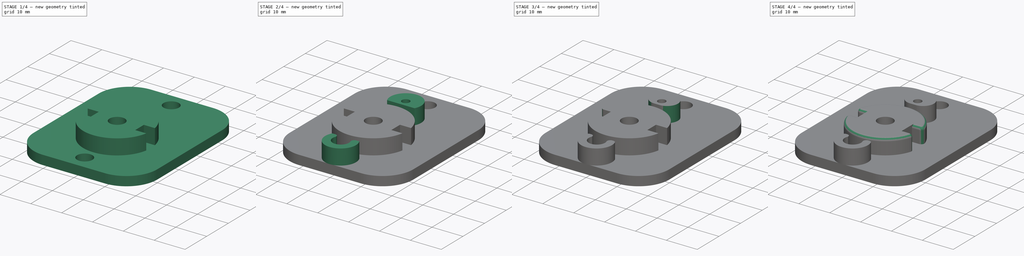
[diagram: build sequence overview — one tinted view per stage of 4, left to right]
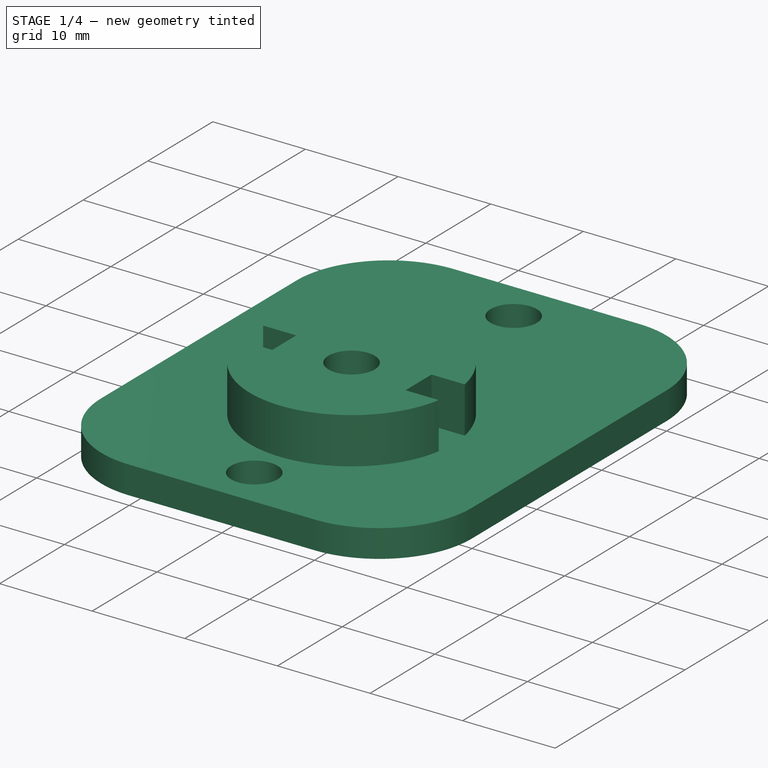
[diagram: stage 1 of 4 — iso view after this stage's code; geometry added in this stage tinted green]
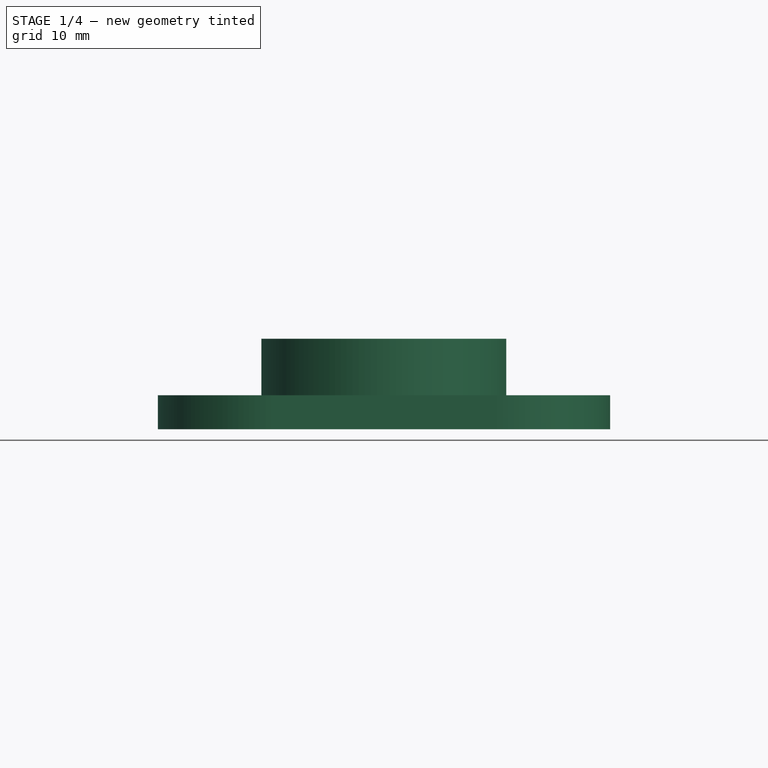
[diagram: stage 1 of 4 — front view after this stage's code; geometry added in this stage tinted green]
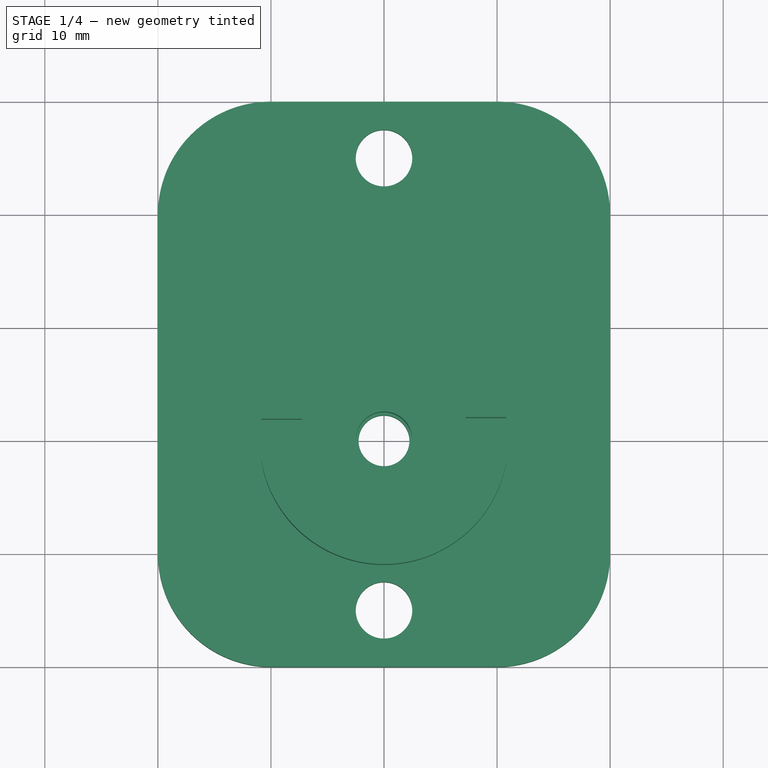
[diagram: stage 1 of 4 — top view after this stage's code; geometry added in this stage tinted green]
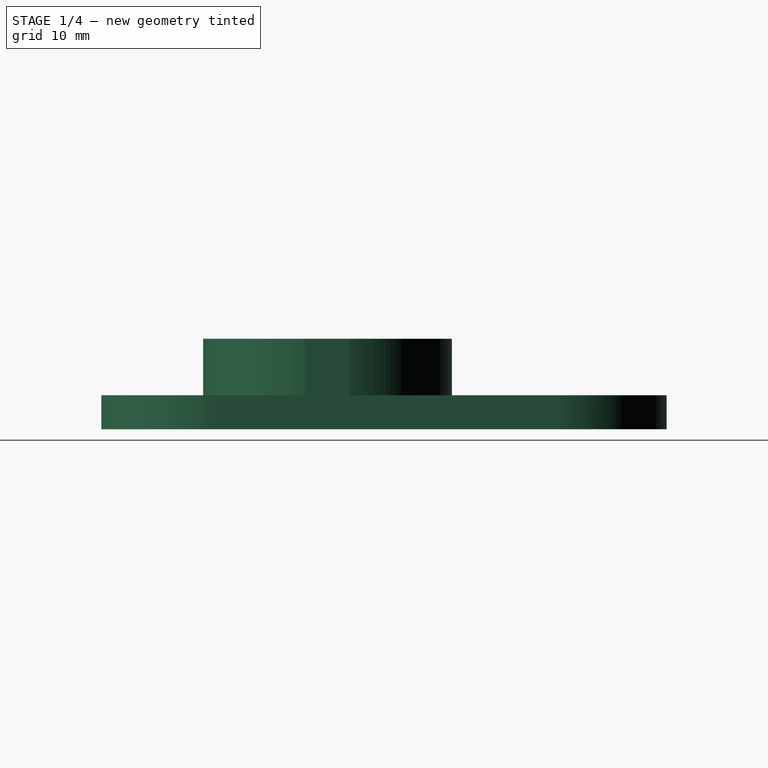
[diagram: stage 1 of 4 — right view after this stage's code; geometry added in this stage tinted green]
FCSTD DOCUMENT  (FreeCAD 0.19R24276 (Git))
Label: SC_ring_V2
License: All rights reserved
LicenseURL: http://en.wikipedia.org/wiki/All_rights_reserved
objects: PartDesign::Fillet×9, Sketcher::SketchObject×4, PartDesign::Pad×3, PartDesign::Pocket×1, PartDesign::Body×1
note: 31 computed .brp shape members not serialized (recipe doc carries the construction recipe); baked Part::Feature solids carry a one-line shape summary decoded from their .brp

FEATURE [Sketcher::SketchObject] Sketch
  FullyConstrained = false
  MapMode = 5
  Support = -> [XY_Plane]
  sketch-geometry (26):
    g0: Circle CenterX=0 CenterY=0 CenterZ=0 NormalX=0 NormalY=0 NormalZ=1 AngleXU=0 Radius=2.5
    g1: Circle CenterX=10 CenterY=5 CenterZ=0 NormalX=0 NormalY=0 NormalZ=1 AngleXU=0 Radius=2.5
    g2: Circle CenterX=10 CenterY=45 CenterZ=0 NormalX=0 NormalY=0 NormalZ=1 AngleXU=0 Radius=2.5
    g3: LineSegment StartX=0 StartY=0 StartZ=0 EndX=0 EndY=14.2557 EndZ=0
    g4: LineSegment StartX=0 StartY=0 StartZ=0 EndX=12.3949 EndY=0 EndZ=0
    g5: Circle CenterX=-10 CenterY=5 CenterZ=0 NormalX=0 NormalY=0 NormalZ=1 AngleXU=0 Radius=2.5
    g6: Circle CenterX=-10 CenterY=45 CenterZ=0 NormalX=0 NormalY=0 NormalZ=1 AngleXU=0 Radius=2.5
    g7: Circle CenterX=10 CenterY=-35 CenterZ=0 NormalX=0 NormalY=0 NormalZ=1 AngleXU=0 Radius=2.5
    g8: Circle CenterX=-10 CenterY=-35 CenterZ=0 NormalX=0 NormalY=0 NormalZ=1 AngleXU=0 Radius=2.5
    g9: LineSegment StartX=-18.8584 StartY=60.3876 StartZ=0 EndX=18.8539 EndY=60.3876 EndZ=0
    g10: LineSegment StartX=18.8539 StartY=60.3876 StartZ=0 EndX=18.8539 EndY=-41.7066 EndZ=0
    g11: LineSegment StartX=18.8539 StartY=-41.7066 StartZ=0 EndX=-18.8584 EndY=-41.7066 EndZ=0
    g12: LineSegment StartX=-18.8584 StartY=-41.7066 StartZ=0 EndX=-18.8584 EndY=60.3876 EndZ=0
    g13: Circle CenterX=0 CenterY=25 CenterZ=0 NormalX=0 NormalY=0 NormalZ=1 AngleXU=0 Radius=2.5
    g14: Circle CenterX=0 CenterY=-15 CenterZ=0 NormalX=0 NormalY=0 NormalZ=1 AngleXU=0 Radius=2.5
    g15: ArcOfCircle CenterX=0 CenterY=0 CenterZ=0 NormalX=0 NormalY=0 NormalZ=1 AngleXU=0 Radius=11 StartAngle=3.31086 EndAngle=6.10035
    g16: ArcOfCircle CenterX=0 CenterY=0 CenterZ=0 NormalX=0 NormalY=0 NormalZ=1 AngleXU=0 Radius=7.5 StartAngle=3.39125 EndAngle=6.01325
    g17: LineSegment StartX=0 StartY=0 StartZ=0 EndX=-7.5 EndY=0 EndZ=0
    g18: LineSegment StartX=-10.8428 StartY=1.85307 StartZ=0 EndX=-7.26747 EndY=1.85307 EndZ=0
    g19: LineSegment StartX=-7.26747 StartY=-1.85307 StartZ=0 EndX=-10.8428 EndY=-1.85307 EndZ=0
    g20: LineSegment StartX=-7.26747 StartY=-1.85307 StartZ=0 EndX=-7.26747 EndY=1.85307 EndZ=0
    g21: LineSegment StartX=10.8167 StartY=2 StartZ=0 EndX=7.22842 EndY=2 EndZ=0
    g22: LineSegment StartX=7.22842 StartY=-2 StartZ=0 EndX=10.8167 EndY=-2 EndZ=0
    g23: LineSegment StartX=7.22842 StartY=-2 StartZ=0 EndX=7.22842 EndY=2 EndZ=0
    g24: ArcOfCircle CenterX=0 CenterY=0 CenterZ=0 NormalX=0 NormalY=0 NormalZ=1 AngleXU=0 Radius=11 StartAngle=0.182835 EndAngle=2.97232
    g25: ArcOfCircle CenterX=0 CenterY=0 CenterZ=0 NormalX=0 NormalY=0 NormalZ=1 AngleXU=0 Radius=7.5 StartAngle=0.269933 EndAngle=2.89193
  constraints (63):
    c: Coincident(g0,g-1)
    c: DistanceY(g1,g2) = 40
    c: Coincident(g3,g-1)
    c: PointOnObject(g3,g-2)
    c: Vertical(g1,g2)
    c: Diameter(g1) = 5
    c: Equal(g1,g2)
    c: Coincident(g4,g-1)
    c: PointOnObject(g4,g-1)
    c: DistanceX(g-1,g1) = 10
    c: Diameter(g5) = 5
    c: Equal(g5,g6)
    c: Horizontal(g8,g7)
    c: Coincident(g9,g10)
    c: Coincident(g10,g11)
    c: Coincident(g11,g12)
    c: Coincident(g12,g9)
    c: Horizontal(g9)
    c: Horizontal(g11)
    c: Vertical(g10)
    c: Vertical(g12)
    c: PointOnObject(g13,g-2)
    c: PointOnObject(g14,g-2)
    c: Equal(g14,g13)
    c: Equal(g13,g7)
    c: Equal(g7,g2)
    c: Equal(g8,g7)
    c: Equal(g0,g14)
    c: DistanceY(g14,g-1) = 15
    c: DistanceY(g8,g14) = 20
    c: DistanceY(g-1,g13) = 25
    c: DistanceY(g5,g13) = 20
    c: Horizontal(g5,g1)
    c: Horizontal(g6,g2)
    c: DistanceX(g6,g13) = 10
    c: DistanceX(g5,g-1) = 10
    c: DistanceX(g8,g14) = 10
    c: DistanceX(g14,g7) = 10
    c: Coincident(g15,g-1)
    c: Diameter(g15) = 22
    c: Coincident(g16,g-1)
    c: Diameter(g16) = 15
    c: Coincident(g17,g-1)
    c: Horizontal(g17)
    c: Horizontal(g18)
    c: Horizontal(g19)
    c: Coincident(g20,g19)
    c: Coincident(g20,g18)
    c: Vertical(g20)
    c: Coincident(g15,g19)
    c: Coincident(g24,g18)
    c: Coincident(g25,g18)
    c: Coincident(g16,g19)
    c: Coincident(g23,g22)
    c: Coincident(g23,g21)
    c: Equal(g15,g24)
    c: PointOnObject(g24,g21)
    c: Coincident(g15,g24)
    c: PointOnObject(g15,g22)
    c: Equal(g16,g25)
    c: PointOnObject(g16,g22)
    c: Coincident(g16,g25)
    c: PointOnObject(g25,g21)
FEATURE [PartDesign::Pad] Pad
  Direction = (1,1,1)
  Length = 5
  Length2 = 100
  Profile = -> Sketch
  Type = 0
FEATURE [Sketcher::SketchObject] Sketch001
  FullyConstrained = false
  MapMode = 5
  Support = -> [XY_Plane]
  sketch-geometry (32):
    g0: Circle CenterX=0 CenterY=0 CenterZ=0 NormalX=0 NormalY=0 NormalZ=1 AngleXU=0 Radius=2.25
    g1: Circle CenterX=10 CenterY=5 CenterZ=0 NormalX=0 NormalY=0 NormalZ=1 AngleXU=0 Radius=2.5
    g2: Circle CenterX=10 CenterY=45 CenterZ=0 NormalX=0 NormalY=0 NormalZ=1 AngleXU=0 Radius=2.5
    g3: LineSegment StartX=0 StartY=0 StartZ=0 EndX=0 EndY=14.2557 EndZ=0
    g4: LineSegment StartX=0 StartY=0 StartZ=0 EndX=12.3949 EndY=0 EndZ=0
    g5: Circle CenterX=-10 CenterY=5 CenterZ=0 NormalX=0 NormalY=0 NormalZ=1 AngleXU=0 Radius=2.5
    g6: Circle CenterX=-10 CenterY=45 CenterZ=0 NormalX=0 NormalY=0 NormalZ=1 AngleXU=0 Radius=2.5
    g7: Circle CenterX=10 CenterY=-35 CenterZ=0 NormalX=0 NormalY=0 NormalZ=1 AngleXU=0 Radius=2.5
    g8: Circle CenterX=-10 CenterY=-35 CenterZ=0 NormalX=0 NormalY=0 NormalZ=1 AngleXU=0 Radius=2.5
    g9: LineSegment StartX=-18.8584 StartY=60.3876 StartZ=0 EndX=18.8539 EndY=60.3876 EndZ=0
    g10: LineSegment StartX=18.8539 StartY=60.3876 StartZ=0 EndX=18.8539 EndY=-41.7066 EndZ=0
    g11: LineSegment StartX=18.8539 StartY=-41.7066 StartZ=0 EndX=-18.8584 EndY=-41.7066 EndZ=0
    g12: LineSegment StartX=-18.8584 StartY=-41.7066 StartZ=0 EndX=-18.8584 EndY=60.3876 EndZ=0
    g13: Circle CenterX=0 CenterY=25 CenterZ=0 NormalX=0 NormalY=0 NormalZ=1 AngleXU=0 Radius=2.5
    g14: Circle CenterX=0 CenterY=-15 CenterZ=0 NormalX=0 NormalY=0 NormalZ=1 AngleXU=0 Radius=2.5
    g15: ArcOfCircle CenterX=0 CenterY=0 CenterZ=0 NormalX=0 NormalY=0 NormalZ=1 AngleXU=0 Radius=11 StartAngle=3.31086 EndAngle=6.10035
    g16: ArcOfCircle CenterX=0 CenterY=0 CenterZ=0 NormalX=0 NormalY=0 NormalZ=1 AngleXU=0 Radius=7.5 StartAngle=3.39125 EndAngle=6.01325
    g17: LineSegment StartX=0 StartY=0 StartZ=0 EndX=-7.5 EndY=0 EndZ=0
    g18: LineSegment StartX=-10.8428 StartY=1.85307 StartZ=0 EndX=-7.26747 EndY=1.85307 EndZ=0
    g19: LineSegment StartX=-7.26747 StartY=-1.85307 StartZ=0 EndX=-10.8428 EndY=-1.85307 EndZ=0
    g20: LineSegment StartX=-7.26747 StartY=-1.85307 StartZ=0 EndX=-7.26747 EndY=1.85307 EndZ=0
    g21: LineSegment StartX=10.8167 StartY=2 StartZ=0 EndX=7.22842 EndY=2 EndZ=0
    g22: LineSegment StartX=7.22842 StartY=-2 StartZ=0 EndX=10.8167 EndY=-2 EndZ=0
    g23: LineSegment StartX=7.22842 StartY=-2 StartZ=0 EndX=7.22842 EndY=2 EndZ=0
    g24: ArcOfCircle CenterX=0 CenterY=0 CenterZ=0 NormalX=0 NormalY=0 NormalZ=1 AngleXU=0 Radius=11 StartAngle=0.182835 EndAngle=2.97232
    g25: ArcOfCircle CenterX=0 CenterY=0 CenterZ=0 NormalX=0 NormalY=0 NormalZ=1 AngleXU=0 Radius=7.5 StartAngle=0.269933 EndAngle=2.89193
    g26: LineSegment StartX=-20 StartY=30 StartZ=0 EndX=20 EndY=30 EndZ=0
    g27: LineSegment StartX=20 StartY=30 StartZ=0 EndX=20 EndY=-20 EndZ=0
    g28: LineSegment StartX=20 StartY=-20 StartZ=0 EndX=-20 EndY=-20 EndZ=0
    g29: LineSegment StartX=-20 StartY=-20 StartZ=0 EndX=-20 EndY=30 EndZ=0
    g30: LineSegment StartX=0 StartY=0 StartZ=0 EndX=0 EndY=-20 EndZ=0
    g31: LineSegment StartX=10 StartY=5 StartZ=0 EndX=20 EndY=5 EndZ=0
  constraints (79):
    c: Coincident(g0,g-1)
    c: DistanceY(g1,g2) = 40
    c: Coincident(g3,g-1)
    c: PointOnObject(g3,g-2)
    c: Vertical(g1,g2)
    c: Diameter(g1) = 5
    c: Equal(g1,g2)
    c: Coincident(g4,g-1)
    c: PointOnObject(g4,g-1)
    c: DistanceX(g-1,g1) = 10
    c: Diameter(g5) = 5
    c: Equal(g5,g6)
    c: Horizontal(g8,g7)
    c: Coincident(g9,g10)
    c: Coincident(g10,g11)
    c: Coincident(g11,g12)
    c: Coincident(g12,g9)
    c: Horizontal(g9)
    c: Horizontal(g11)
    c: Vertical(g10)
    c: Vertical(g12)
    c: PointOnObject(g13,g-2)
    c: PointOnObject(g14,g-2)
    c: Equal(g14,g13)
    c: Equal(g13,g7)
    c: Equal(g7,g2)
    c: Equal(g8,g7)
    c: DistanceY(g14,g-1) = 15
    c: DistanceY(g8,g14) = 20
    c: DistanceY(g-1,g13) = 25
    c: DistanceY(g5,g13) = 20
    c: Horizontal(g5,g1)
    c: Horizontal(g6,g2)
    c: DistanceX(g6,g13) = 10
    c: DistanceX(g5,g-1) = 10
    c: DistanceX(g8,g14) = 10
    c: DistanceX(g14,g7) = 10
    c: Coincident(g15,g-1)
    c: Diameter(g15) = 22
    c: Coincident(g16,g-1)
    c: Diameter(g16) = 15
    c: Coincident(g17,g-1)
    c: Horizontal(g17)
    c: Horizontal(g18)
    c: Horizontal(g19)
    c: Coincident(g20,g19)
    c: Coincident(g20,g18)
    c: Vertical(g20)
    c: Coincident(g15,g19)
    c: Coincident(g24,g18)
    c: Coincident(g25,g18)
    c: Coincident(g16,g19)
    c: Coincident(g23,g22)
    c: Coincident(g23,g21)
    c: Equal(g15,g24)
    c: PointOnObject(g24,g21)
    c: Coincident(g15,g24)
    c: PointOnObject(g15,g22)
    c: Equal(g16,g25)
    c: PointOnObject(g16,g22)
    c: Coincident(g16,g25)
    c: PointOnObject(g25,g21)
    c: Coincident(g26,g27)
    c: Coincident(g27,g28)
    c: Coincident(g28,g29)
    c: Coincident(g29,g26)
    c: Horizontal(g26)
    c: Horizontal(g28)
    c: Vertical(g27)
    c: Vertical(g29)
    c: Coincident(g30,g0)
    c: PointOnObject(g30,g-2)
    c: Symmetric(g28,g27,g30)
    c: DistanceX(g28,g28) = 40
    c: DistanceY(g27,g27) = 50
    c: Coincident(g31,g1)
    c: Horizontal(g31)
    c: Symmetric(g26,g27,g31)
    c: Diameter(g0) = 4.5
FEATURE [PartDesign::Pad] Pad001
  BaseFeature = -> Pad
  Direction = (1,1,1)
  Length = 3
  Length2 = 100
  Profile = -> Sketch001
  Reversed = true
  Type = 0
FEATURE [PartDesign::Fillet] Fillet
  Base = -> Pad001 [Edge8,Edge5,Edge1,Edge2]
  BaseFeature = -> Pad001
  Radius = 10
  SupportTransform = false
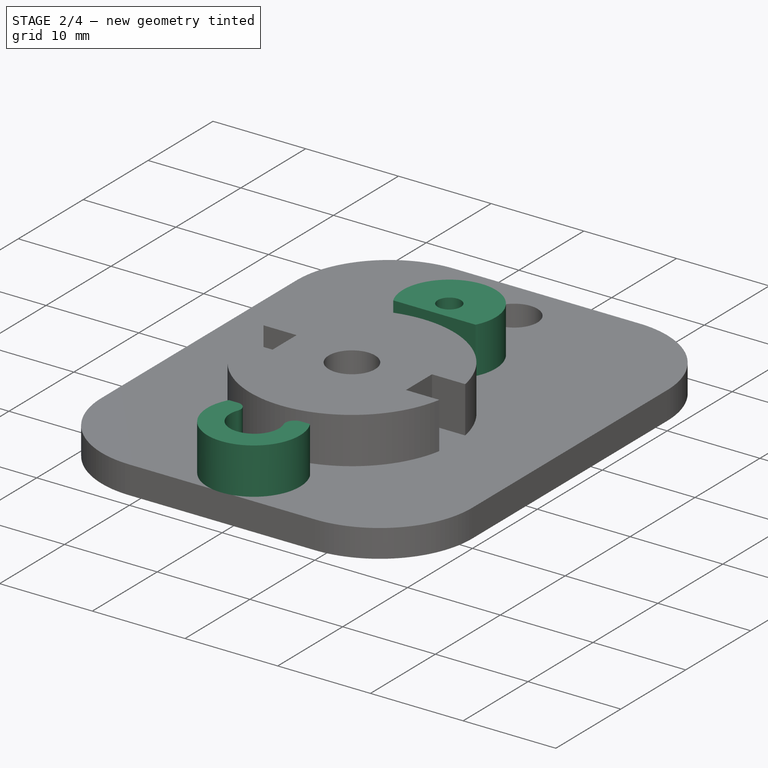
[diagram: stage 2 of 4 — iso view after this stage's code; geometry added in this stage tinted green]
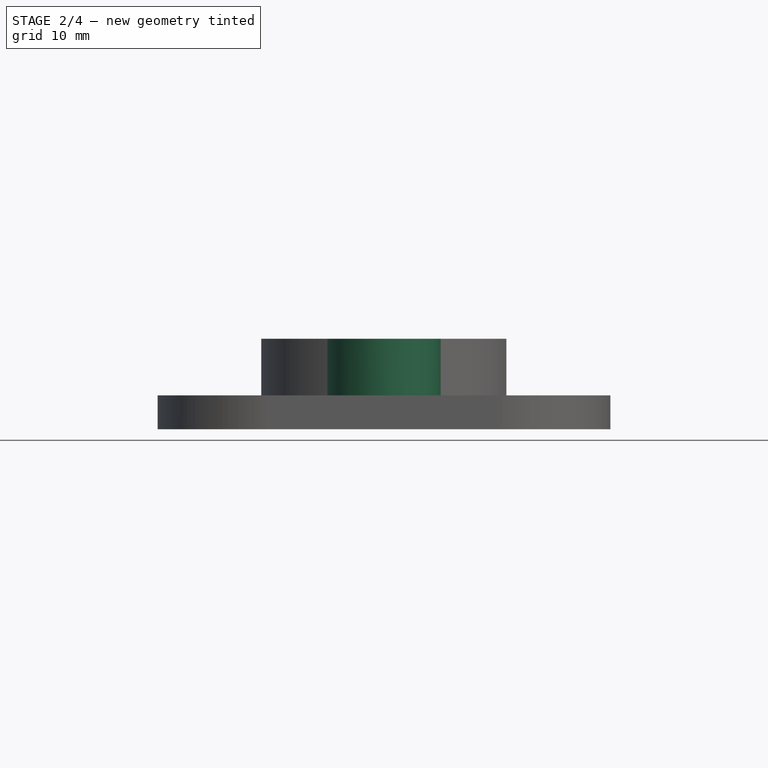
[diagram: stage 2 of 4 — front view after this stage's code; geometry added in this stage tinted green]
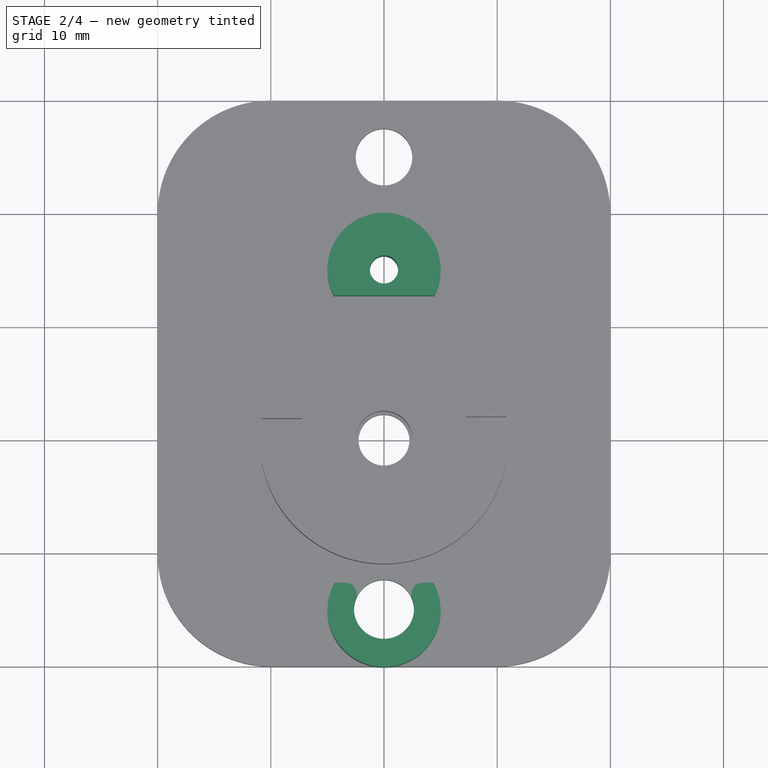
[diagram: stage 2 of 4 — top view after this stage's code; geometry added in this stage tinted green]
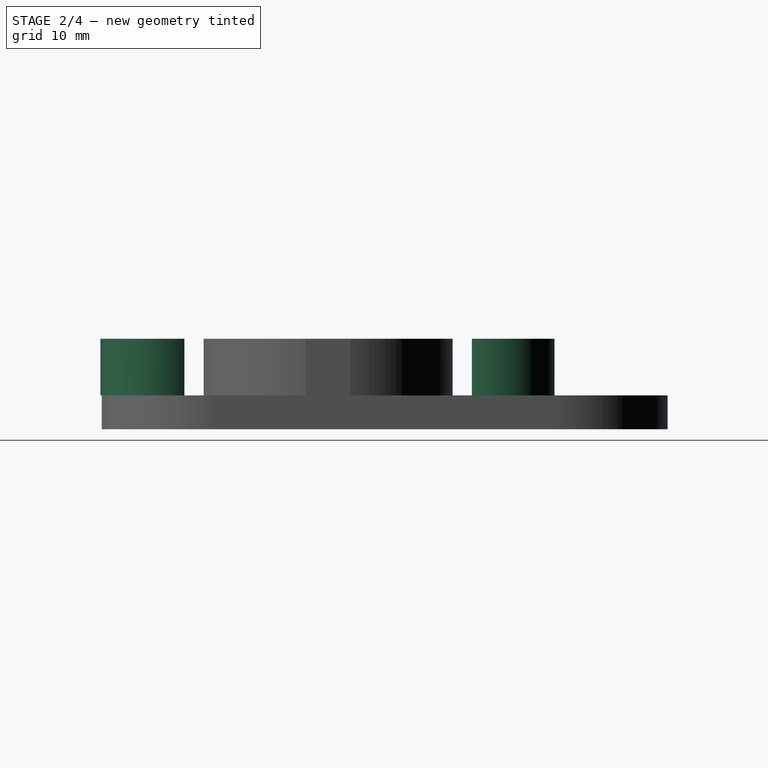
[diagram: stage 2 of 4 — right view after this stage's code; geometry added in this stage tinted green]
FEATURE [Sketcher::SketchObject] Sketch002
  FullyConstrained = false
  MapMode = 5
  Support = -> [Fillet]
  sketch-geometry (8):
    g0: ArcOfCircle CenterX=0 CenterY=-15.1265 CenterZ=0 NormalX=0 NormalY=0 NormalZ=1 AngleXU=0 Radius=5 StartAngle=2.63488 EndAngle=6.7899
    g1: LineSegment StartX=0 StartY=0 StartZ=0 EndX=0 EndY=-12.7 EndZ=0
    g2: LineSegment StartX=0 StartY=-12.7 StartZ=0 EndX=4.37172 EndY=-12.7 EndZ=0
    g3: LineSegment StartX=4.37172 StartY=-12.7 StartZ=0 EndX=-4.37172 EndY=-12.7 EndZ=0
    g4: ArcOfCircle CenterX=0 CenterY=15 CenterZ=0 NormalX=0 NormalY=0 NormalZ=1 AngleXU=0 Radius=5 StartAngle=5.80519 EndAngle=9.90277
    g5: LineSegment StartX=0 StartY=0 StartZ=0 EndX=0 EndY=12.7 EndZ=0
    g6: LineSegment StartX=0 StartY=12.7 StartZ=0 EndX=4.43959 EndY=12.7 EndZ=0
    g7: LineSegment StartX=4.43959 StartY=12.7 StartZ=0 EndX=-4.43959 EndY=12.7 EndZ=0
  constraints (23):
    c: PointOnObject(g0,g-2)
    c: Diameter(g0) = 10
    c: Coincident(g1,g-1)
    c: PointOnObject(g1,g-2)
    c: DistanceY(g1,g1) = 12.7
    c: Coincident(g2,g1)
    c: Horizontal(g2)
    c: Coincident(g3,g2)
    c: Horizontal(g3)
    c: Coincident(g0,g2)
    c: Coincident(g0,g3)
    c: PointOnObject(g4,g-2)
    c: DistanceY(g-1,g4) = 15
    c: Equal(g4,g0)
    c: Coincident(g5,g-1)
    c: PointOnObject(g5,g-2)
    c: DistanceY(g5,g5) = 12.7
    c: Coincident(g6,g5)
    c: Horizontal(g6)
    c: Coincident(g7,g6)
    c: Horizontal(g7)
    c: Coincident(g4,g7)
    c: Coincident(g4,g6)
FEATURE [PartDesign::Pad] Pad002
  BaseFeature = -> Fillet
  Direction = (1,1,1)
  Length = 5
  Length2 = 100
  Profile = -> Sketch002
  Type = 0
FEATURE [Sketcher::SketchObject] Sketch003
  FullyConstrained = true
  MapMode = 5
  Placement = pos=(0,0,5) rot=(0,0,1;0rad)
  Support = -> [Pad002]
  sketch-geometry (2):
    g0: Circle CenterX=0 CenterY=15 CenterZ=0 NormalX=0 NormalY=0 NormalZ=1 AngleXU=0 Radius=1.25
    g1: Circle CenterX=0 CenterY=-15 CenterZ=0 NormalX=0 NormalY=0 NormalZ=1 AngleXU=0 Radius=2.65
  constraints (6):
    c: PointOnObject(g0,g-2)
    c: PointOnObject(g1,g-2)
    c: Diameter(g1) = 5.3
    c: DistanceY(g1,g-1) = 15
    c: Diameter(g0) = 2.5
    c: DistanceY(g-1,g0) = 15
FEATURE [PartDesign::Pocket] Pocket
  BaseFeature = -> Pad002
  Length = 5
  Length2 = 100
  Profile = -> Sketch003
  Type = 1
FEATURE [PartDesign::Fillet] Fillet001
  Base = -> Pocket [Edge53,Edge50]
  BaseFeature = -> Pocket
  Radius = 1
  SupportTransform = false
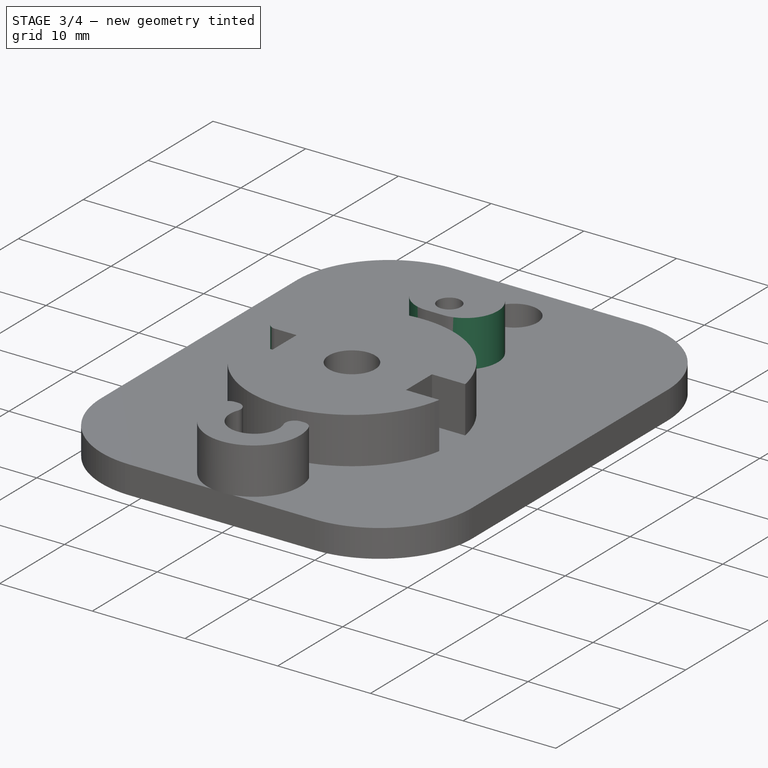
[diagram: stage 3 of 4 — iso view after this stage's code; geometry added in this stage tinted green]
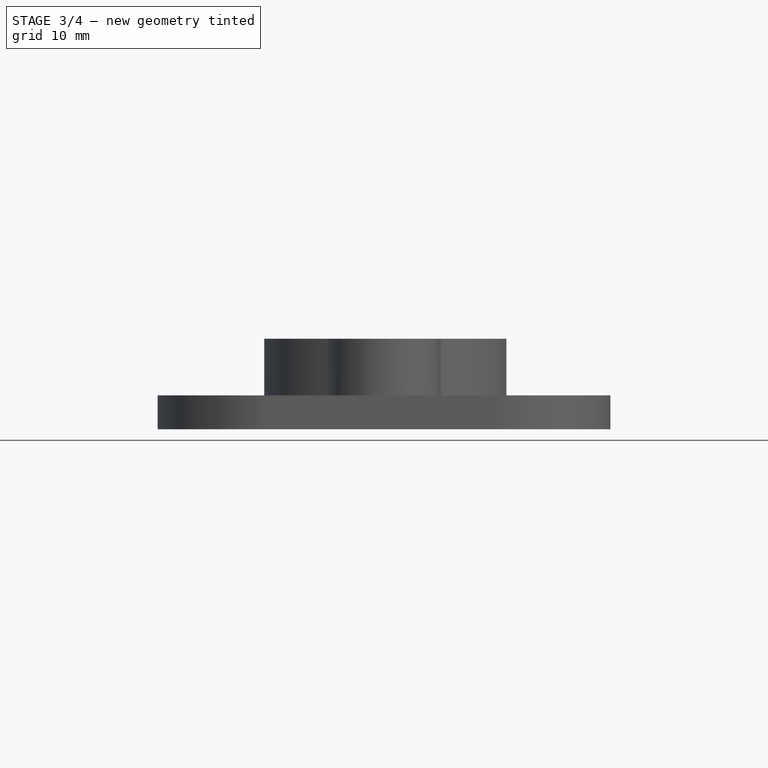
[diagram: stage 3 of 4 — front view after this stage's code; geometry added in this stage tinted green]
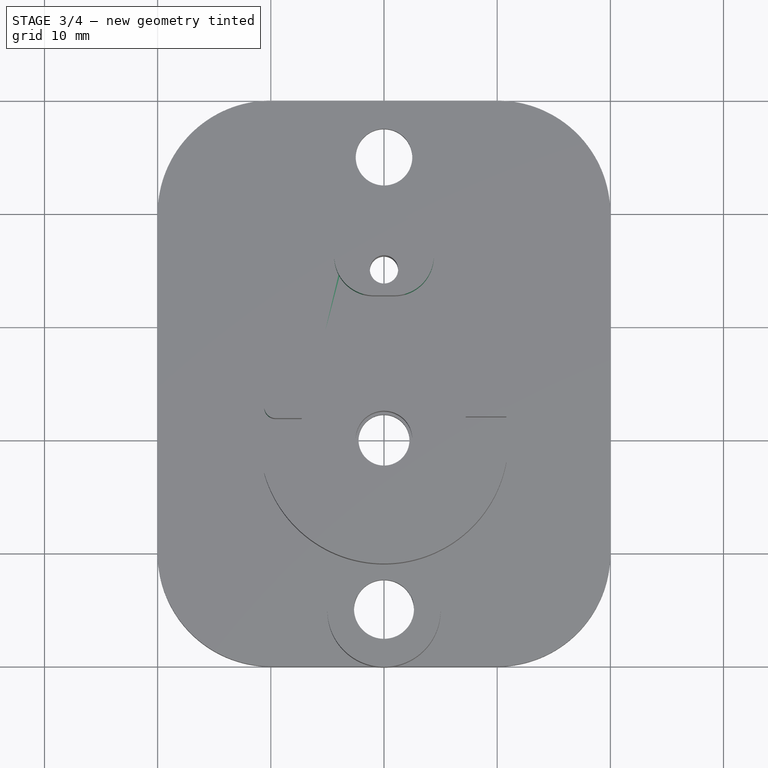
[diagram: stage 3 of 4 — top view after this stage's code; geometry added in this stage tinted green]
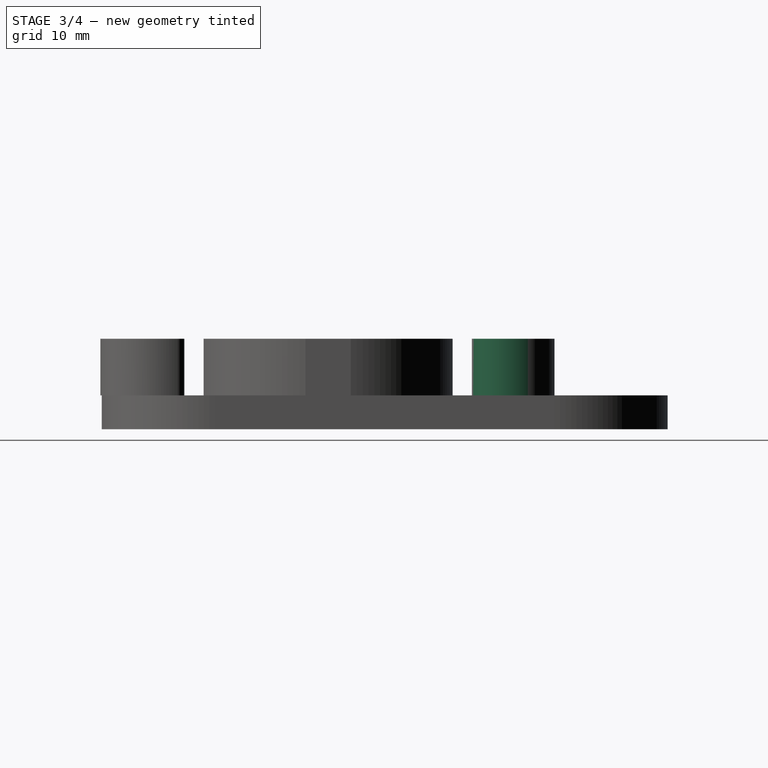
[diagram: stage 3 of 4 — right view after this stage's code; geometry added in this stage tinted green]
FEATURE [PartDesign::Fillet] Fillet002
  Base = -> Fillet001 [Edge31]
  BaseFeature = -> Fillet001
  Radius = 1
  SupportTransform = false
FEATURE [PartDesign::Fillet] Fillet003
  Base = -> Fillet002 [Edge40]
  BaseFeature = -> Fillet002
  Radius = 1
  SupportTransform = false
FEATURE [PartDesign::Fillet] Fillet004
  Base = -> Fillet003 [Edge86,Edge85]
  BaseFeature = -> Fillet003
  Radius = 3.5
  SupportTransform = false
FEATURE [PartDesign::Fillet] Fillet005
  Base = -> Fillet004 [Edge84,Edge82]
  BaseFeature = -> Fillet004
  Radius = 1
  SupportTransform = false
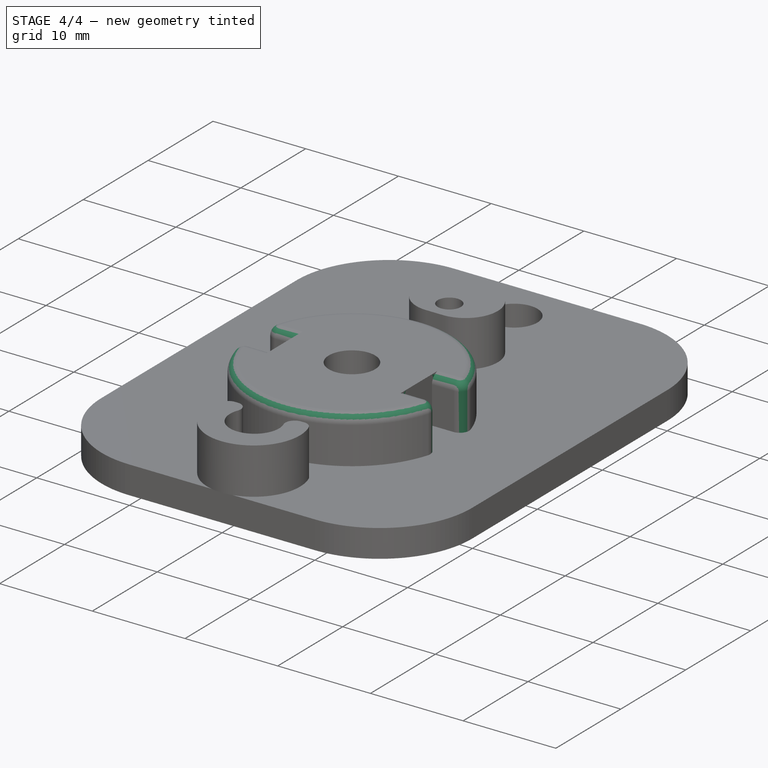
[diagram: stage 4 of 4 — iso view after this stage's code; geometry added in this stage tinted green]
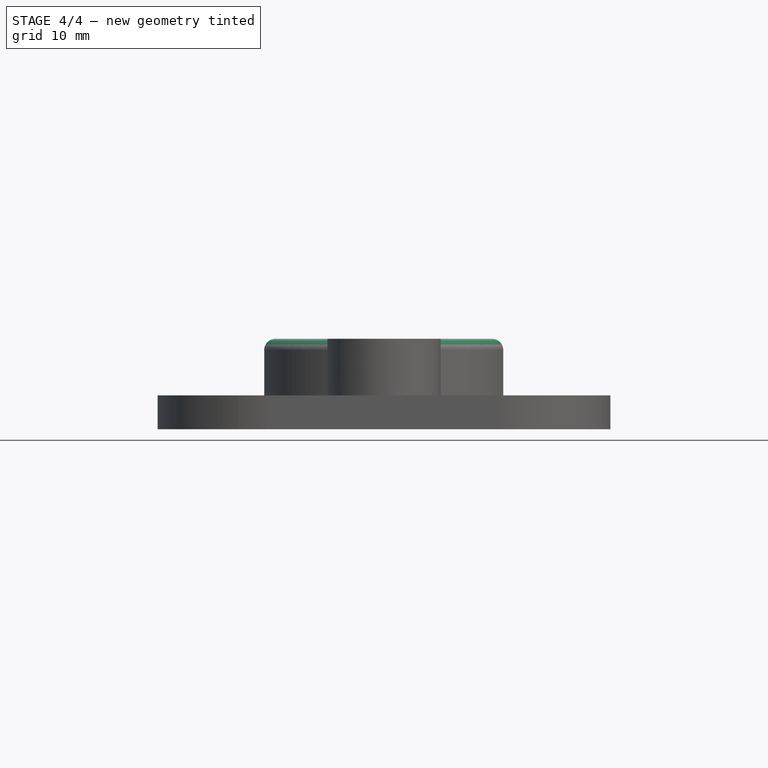
[diagram: stage 4 of 4 — front view after this stage's code; geometry added in this stage tinted green]
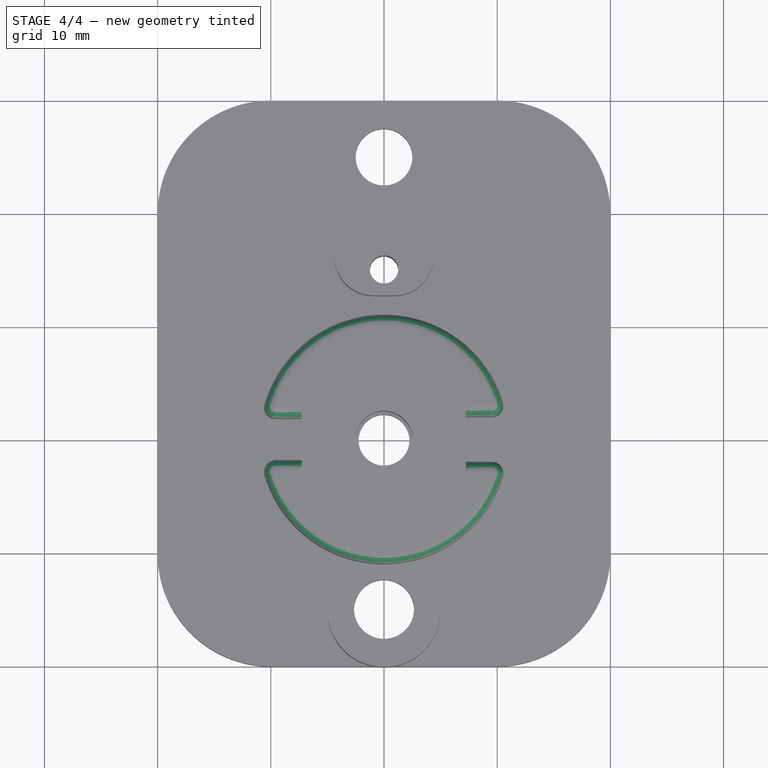
[diagram: stage 4 of 4 — top view after this stage's code; geometry added in this stage tinted green]
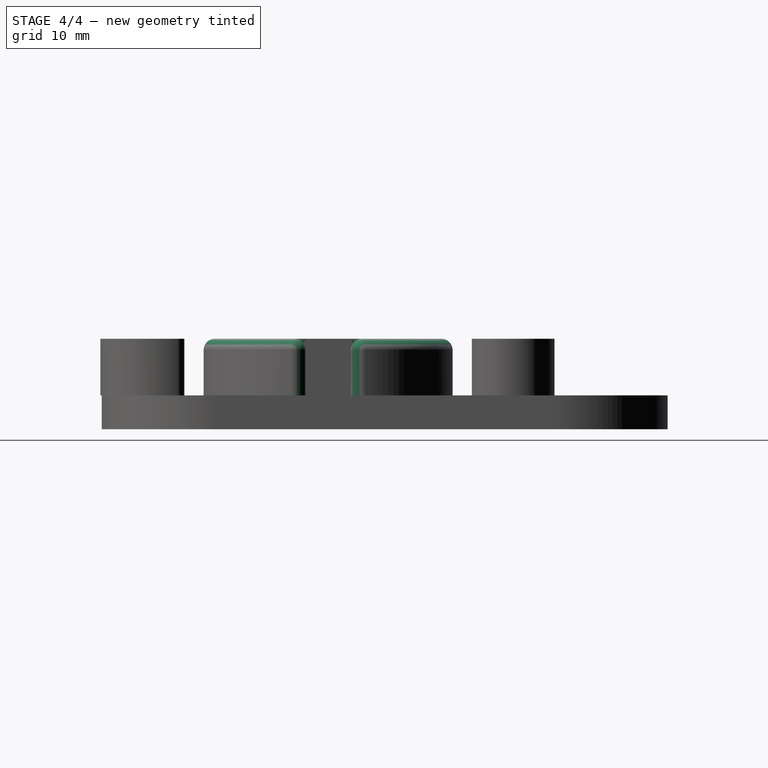
[diagram: stage 4 of 4 — right view after this stage's code; geometry added in this stage tinted green]
FEATURE [PartDesign::Fillet] Fillet006
  Base = -> Fillet005 [Edge53,Edge43]
  BaseFeature = -> Fillet005
  Radius = 1
  SupportTransform = false
FEATURE [PartDesign::Fillet] Fillet007
  Base = -> Fillet006 [Edge40]
  BaseFeature = -> Fillet006
  Radius = 1
  SupportTransform = false
FEATURE [PartDesign::Fillet] Fillet008
  Base = -> Fillet007 [Edge60]
  BaseFeature = -> Fillet007
  Radius = 1
  SupportTransform = false
FEATURE [PartDesign::Body] Body
  Group = -> [Sketch,Pad,Sketch001,Pad001,Fillet,Sketch002,Pad002,Sketch003,Pocket,Fillet001,Fillet002,Fillet003,Fillet004,Fillet005,Fillet006,Fillet007,Fillet008]
  Origin = -> Origin
  Tip = -> Fillet008
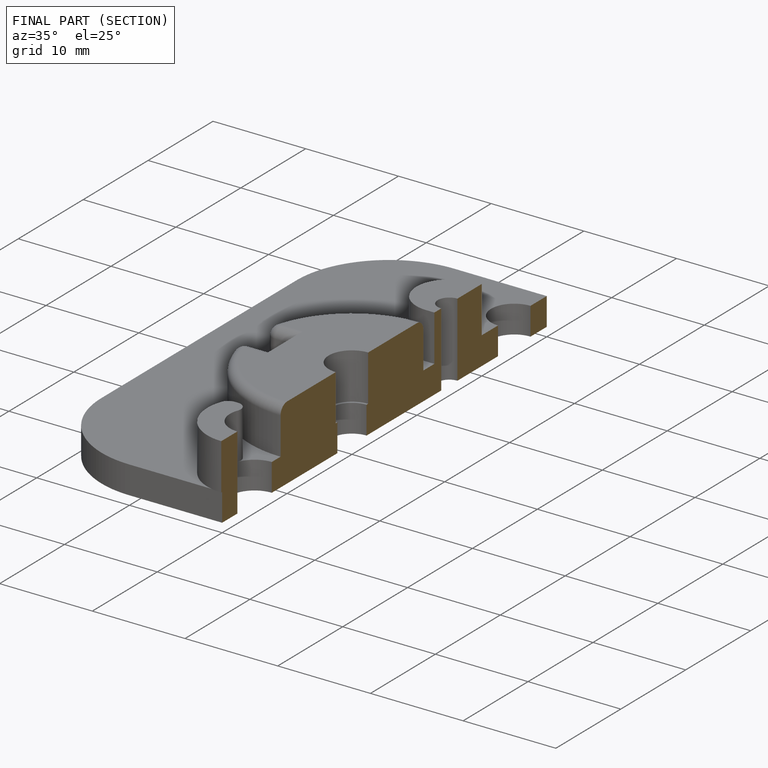
[diagram: finished part — half-section view (interior)]
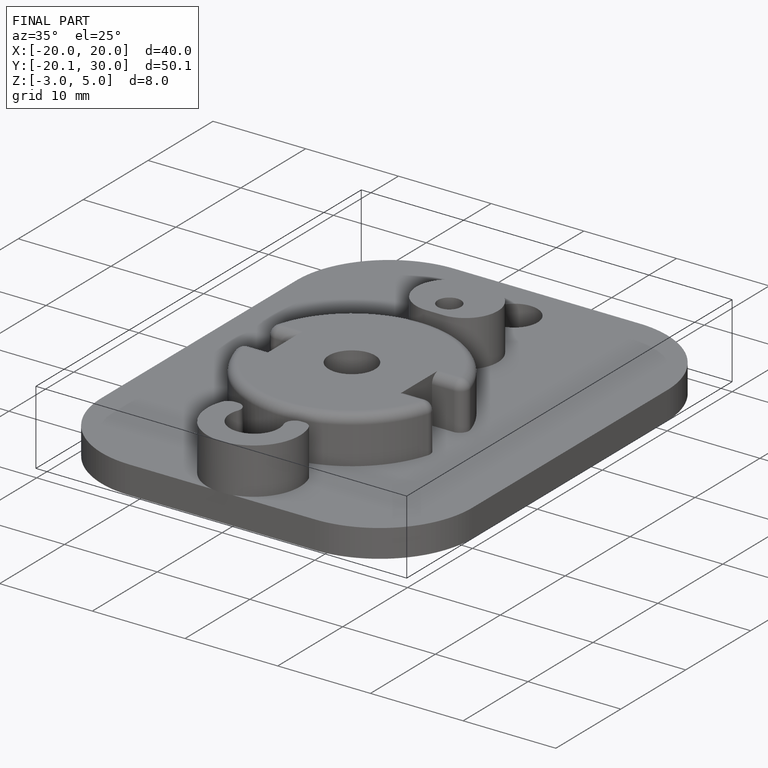
[diagram: finished part — iso view with bounding-box wireframe]
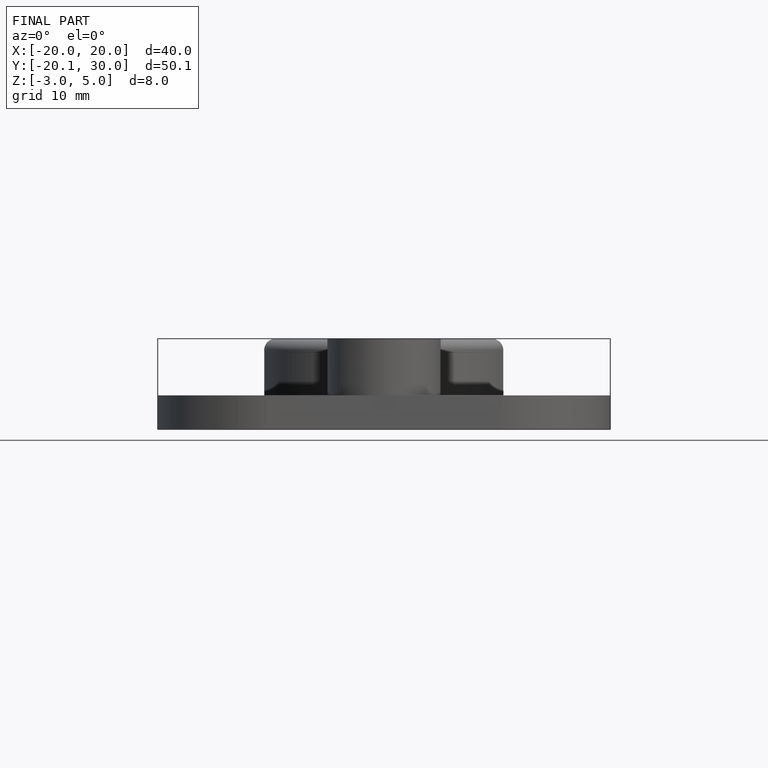
[diagram: finished part — front view with bounding-box wireframe]
